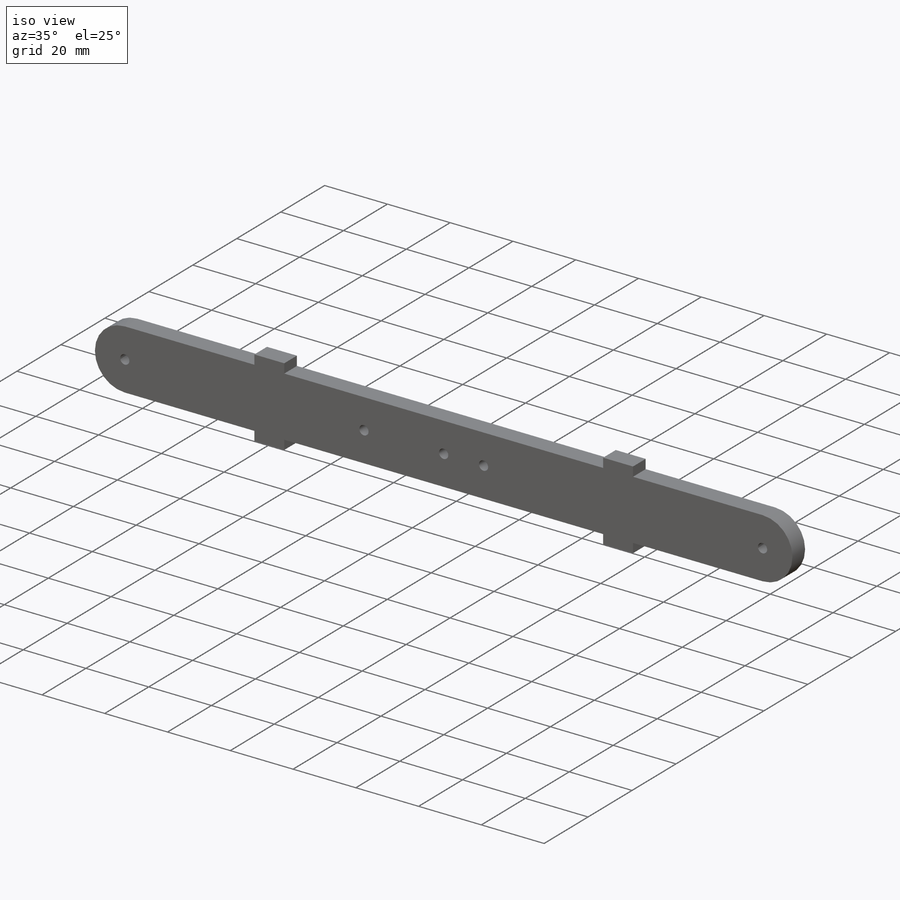
[diagram: iso view]
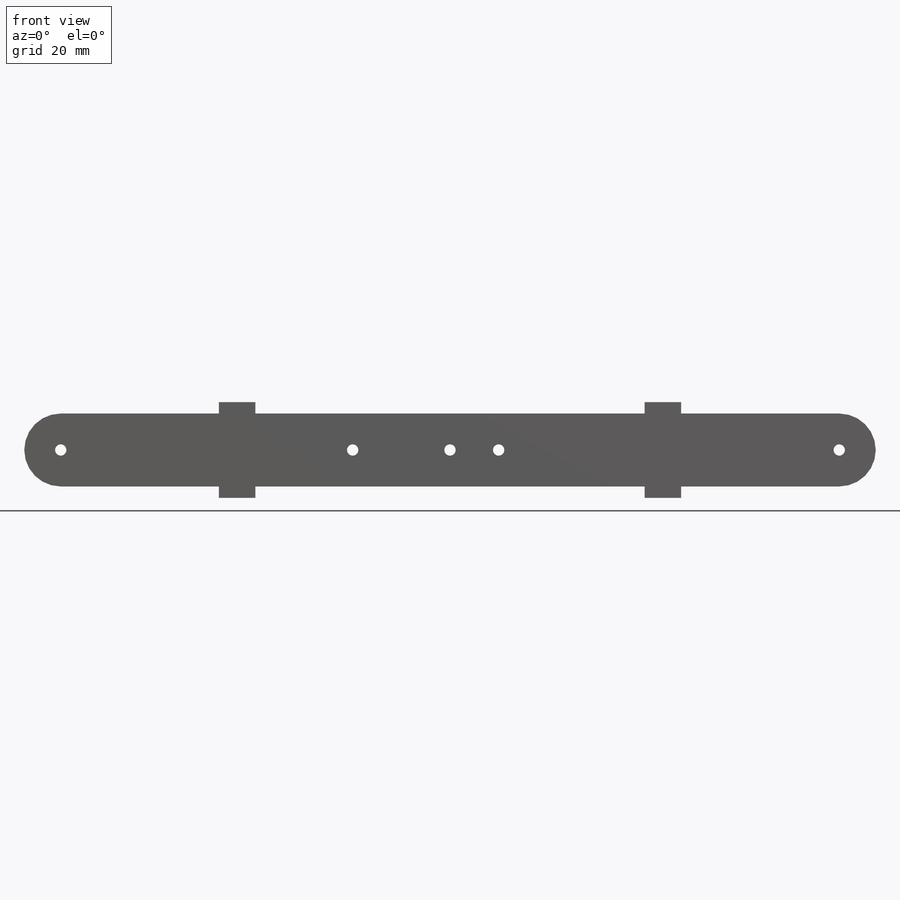
[diagram: front view]
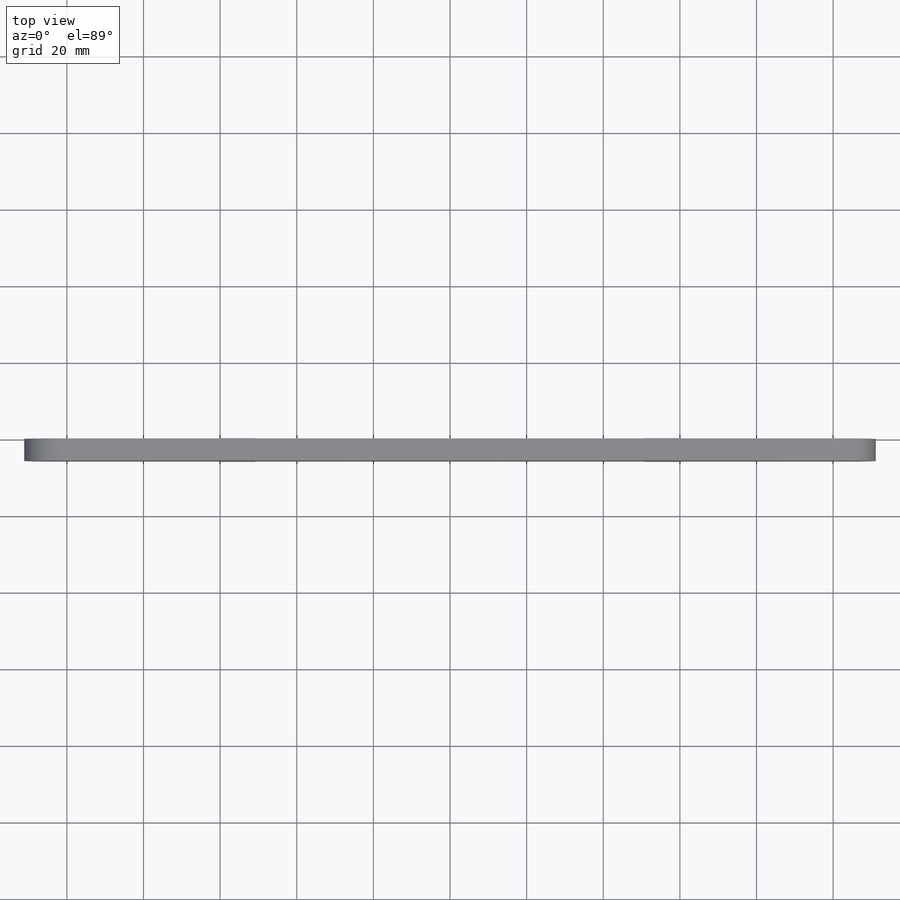
[diagram: top view]
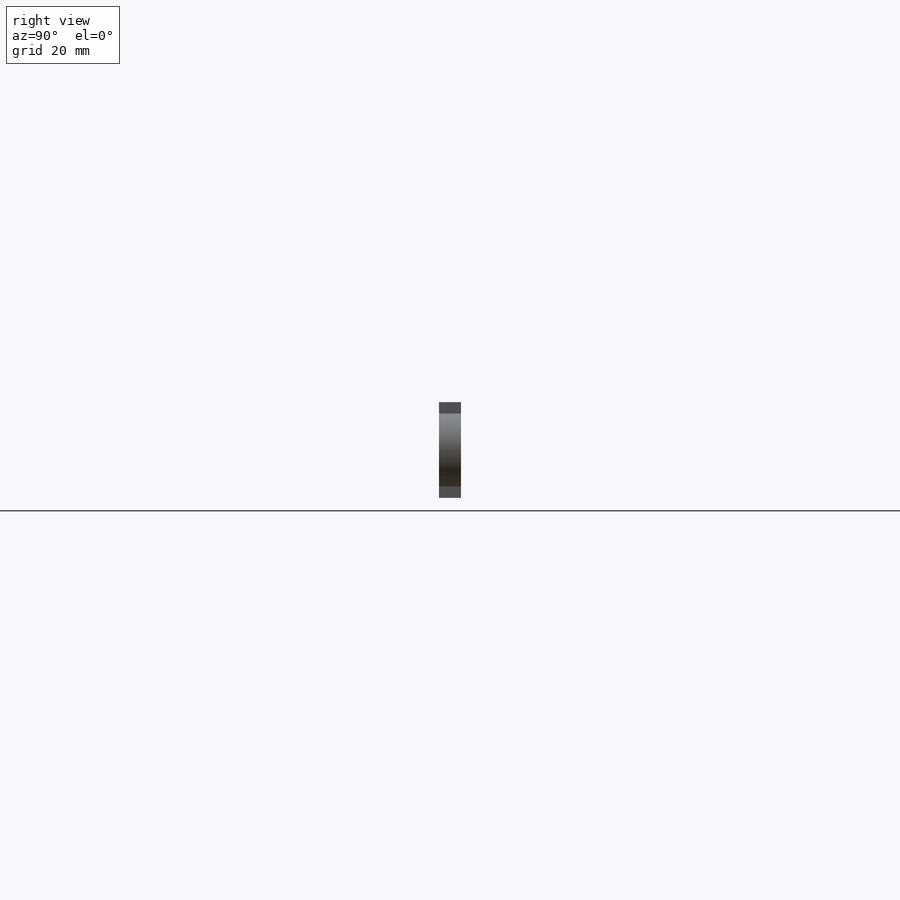
[diagram: right view]
SOLIDWORKS PART (.sldprt)
format: sldprt  version: not decoded by parser v0  size: 303,616 bytes
history: native  units: mm
features: sketch x4, extrude x2, material x1, hole x1 (+12 scaffold rows collapsed)
feature tree (20):
  scaffold x12  (default folders/planes/origin — collapsed)
  material  "Material <not specified>"
  sketch  "Sketch1"  dims[c1.D2=2.9464mm c1.D3=~12.783111mm c1.D1=203.2mm c2.D3=19.05mm]
  extrude  "Boss-Extrude1"  Depth=5.7658mm
  hole  "#4 Clearance Hole1"  Diameter=2.9464mm Depth=5.7658mm
  sketch  "Sketch4"  dims[c1.D1=~67.733333mm c1.D2=~67.733333mm c2.D1=76.2mm c2.D2=114.3mm]
  sketch  "Sketch3"  dims[hole-wizard template sketch: 60 standard entries collapsed; hole parameters kept: c18.Thru Hole Depth=5.7658mm]
  sketch  "Sketch5"  dims[D1=9.525mm D2=2.9591mm D3=101.6mm]
  extrude  "Boss-Extrude2"  [1 undecoded]
decode coverage: 6 of 7 modeling features carry decoded parameters
note: ~ marks probable driven/reference dimensions
note: 1 parameter value undecoded
note: suppression state not decoded; provenance and decode notes live in map.json
